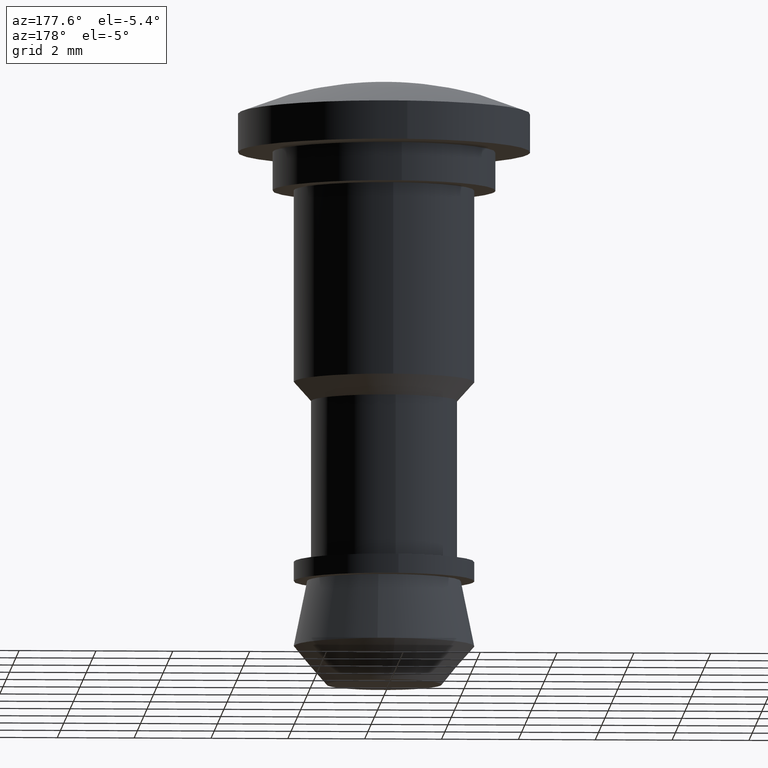
[diagram: clean part render]
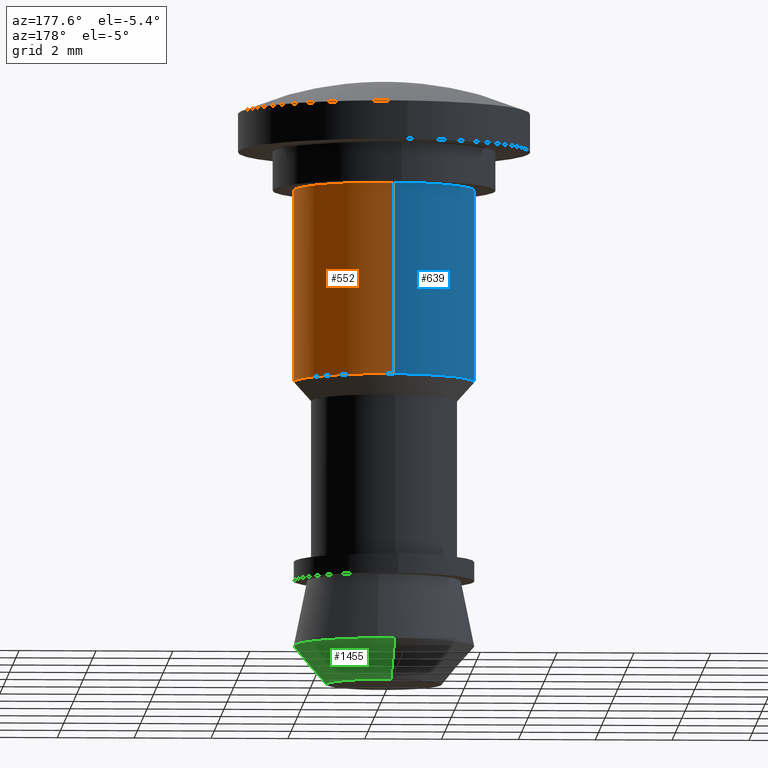
[diagram: same view with three faces highlighted in distinct colors, each labeled with its STEP entity id]
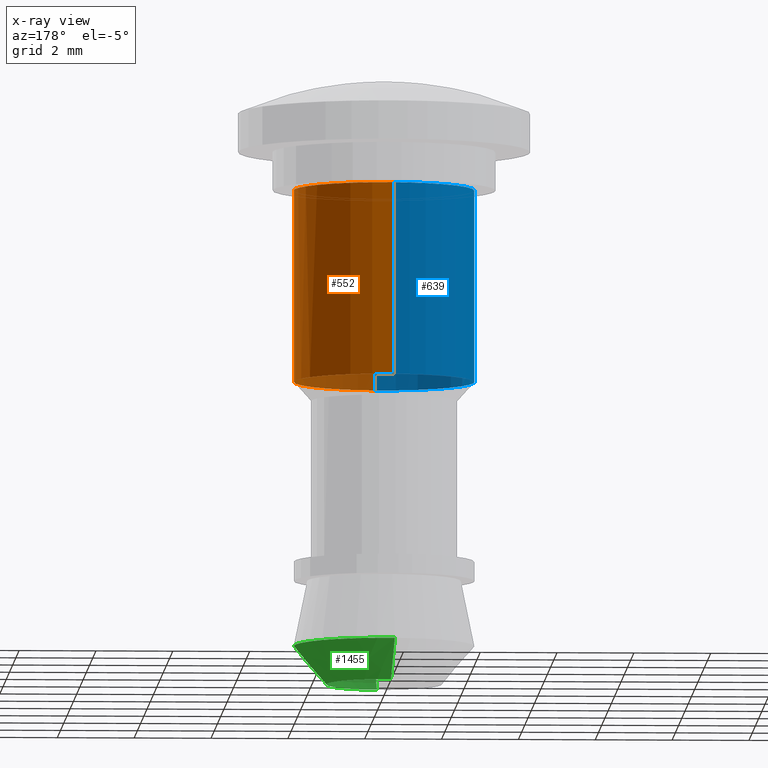
[diagram: x-ray of the same camera — body ghosted, the three highlighted faces saturated]
A machine part, auxiliary view with three faces highlighted in distinct colors.
The next image is the same camera in x-ray (body ghosted, the three faces saturated) — at least one of them is partly hidden behind the body in this view.
Their STEP definitions:

[orange] entity #552 — the highlighted face is a freeform B-spline surface patch.
#420=CARTESIAN_POINT('',(-0.176442931078499,2.343599702610228,0.125000000000000));
#421=CARTESIAN_POINT('',(-0.160001654902445,2.344605294139773,0.125000000000000));
#422=CARTESIAN_POINT('',(2.202152708384472,2.489080844198301,0.125000000000000));
#423=CARTESIAN_POINT('',(2.345616776291387,0.143464067906914,0.125000000000000));
#424=CARTESIAN_POINT('',(2.489080844198301,-2.202152708384472,0.125000000000000));
#425=CARTESIAN_POINT('',(0.126924577174466,-2.346628374880538,0.125000000000000));
#426=CARTESIAN_POINT('',(0.110481419404267,-2.347634081493313,0.125000000000000));
#427=CARTESIAN_POINT('',(-0.176442931078499,2.343599702610228,-5.128124999999999));
#428=CARTESIAN_POINT('',(-0.160001654902445,2.344605294139773,-5.128124999999999));
#429=CARTESIAN_POINT('',(2.202152708384472,2.489080844198301,-5.128125000000001));
#430=CARTESIAN_POINT('',(2.345616776291387,0.143464067906914,-5.128125000000001));
#431=CARTESIAN_POINT('',(2.489080844198301,-2.202152708384472,-5.128125000000001));
#432=CARTESIAN_POINT('',(0.126924577174466,-2.346628374880538,-5.128125000000000));
#433=CARTESIAN_POINT('',(0.110481419404267,-2.347634081493313,-5.128125000000004));
#441=(BOUNDED_SURFACE()B_SPLINE_SURFACE(2,1,((#420,#427),(#421,#428),(#422,#429),(#423,#430),(#424,#431),(#425,#432),(#426,#433)),.UNSPECIFIED.,.F.,.F.,.U.)B_SPLINE_SURFACE_WITH_KNOTS((3,1,2,1,3),(2,2),(0.0,0.038936096477855,3.932543582784948,7.826151069092041,7.865091660857744),(0.0,5.253125000000002),.UNSPECIFIED.)GEOMETRIC_REPRESENTATION_ITEM()RATIONAL_B_SPLINE_SURFACE(((1.005857867628176,1.005857867628176),(1.002928933814088,1.002928933814088),(0.707106781186548,0.707106781186548),(1.0,1.0),(0.707106781186548,0.707106781186548),(1.002929271968186,1.002929271968186),(1.005858543936371,1.005858543936371)))REPRESENTATION_ITEM('')SURFACE());
#442=CARTESIAN_POINT('',(-0.143464067914200,2.345616776290942,-5.0));
#443=VERTEX_POINT('',#442);
#444=CARTESIAN_POINT('',(1.981144114830629,1.263949364599828,-4.999999999999912));
#445=VERTEX_POINT('',#444);
#446=CARTESIAN_POINT('',(-0.143464067914200,2.345616776290942,-5.0));
#447=CARTESIAN_POINT('',(-0.071798993758991,2.350000000000000,-4.999999999999999));
#448=CARTESIAN_POINT('',(0.0,2.350000000000000,-5.0));
#449=CARTESIAN_POINT('',(1.288255091632711,2.350000000000000,-5.0));
#450=CARTESIAN_POINT('',(1.981144114830629,1.263949364599828,-4.999999999999911));
#458=(BOUNDED_CURVE()B_SPLINE_CURVE(2,(#446,#447,#448,#449,#450),.UNSPECIFIED.,.F.,.U.)B_SPLINE_CURVE_WITH_KNOTS((3,2,3),(0.239332962240896,0.250000000000000,0.407950112627384),.UNSPECIFIED.)CURVE()GEOMETRIC_REPRESENTATION_ITEM()RATIONAL_B_SPLINE_CURVE((0.976072041670904,0.987502787902126,1.0,0.814949932402473,0.863729296954821))REPRESENTATION_ITEM(''));
#459=EDGE_CURVE('',#443,#445,#458,.T.);
#460=ORIENTED_EDGE('',*,*,#459,.F.);
#461=CARTESIAN_POINT('',(-0.143460238088021,2.345617010526869,-1.110223E-016));
#462=VERTEX_POINT('',#461);
#463=CARTESIAN_POINT('',(-0.143460238088021,2.345617010526869,-1.110223E-016));
#464=CARTESIAN_POINT('',(-0.143464067914200,2.345616776290942,-5.0));
#465=QUASI_UNIFORM_CURVE('',1,(#463,#464),.UNSPECIFIED.,.F.,.U.);
#466=EDGE_CURVE('',#462,#443,#465,.T.);
#467=ORIENTED_EDGE('',*,*,#466,.F.);
#468=CARTESIAN_POINT('',(2.350000000000000,0.0,0.0));
#469=VERTEX_POINT('',#468);
#470=CARTESIAN_POINT('',(-0.143460238088021,2.345617010526869,-1.110223E-016));
#471=CARTESIAN_POINT('',(-0.071797073473257,2.350000000000000,0.0));
#472=CARTESIAN_POINT('',(0.0,2.350000000000000,0.0));
#473=CARTESIAN_POINT('',(2.350000000000001,2.350000000000001,0.0));
#474=CARTESIAN_POINT('',(2.350000000000000,0.0,0.0));
#482=(BOUNDED_CURVE()B_SPLINE_CURVE(2,(#470,#471,#472,#473,#474),.UNSPECIFIED.,.F.,.U.)B_SPLINE_CURVE_WITH_KNOTS((3,2,3),(0.239333243968762,0.250000000000000,0.500000000000000),.UNSPECIFIED.)CURVE()GEOMETRIC_REPRESENTATION_ITEM()RATIONAL_B_SPLINE_CURVE((0.976072645468094,0.987503117966852,1.0,0.707106781186547,1.0))REPRESENTATION_ITEM(''));
#483=EDGE_CURVE('',#462,#469,#482,.T.);
#484=ORIENTED_EDGE('',*,*,#483,.T.);
#485=CARTESIAN_POINT('',(0.143460238088021,-2.345617010526869,-1.110223E-016));
#486=VERTEX_POINT('',#485);
#487=CARTESIAN_POINT('',(2.350000000000000,0.0,0.0));
#488=CARTESIAN_POINT('',(2.350000000000001,-2.210662873442012,0.0));
#489=CARTESIAN_POINT('',(0.143460238088021,-2.345617010526869,-1.110223E-016));
#497=(BOUNDED_CURVE()B_SPLINE_CURVE(2,(#487,#488,#489),.UNSPECIFIED.,.F.,.U.)B_SPLINE_CURVE_WITH_KNOTS((3,3),(0.500000000000000,0.739333243968762),.UNSPECIFIED.)CURVE()GEOMETRIC_REPRESENTATION_ITEM()RATIONAL_B_SPLINE_CURVE((1.0,0.719603663219696,0.976072645468094))REPRESENTATION_ITEM(''));
#498=EDGE_CURVE('',#469,#486,#497,.T.);
#499=ORIENTED_EDGE('',*,*,#498,.T.);
#500=CARTESIAN_POINT('',(0.143463825532279,-2.345616791115630,-4.999999999999996));
#501=VERTEX_POINT('',#500);
#502=CARTESIAN_POINT('',(0.143460238088021,-2.345617010526869,-1.110223E-016));
#503=CARTESIAN_POINT('',(0.143463825532279,-2.345616791115630,-4.999999999999996));
#504=QUASI_UNIFORM_CURVE('',1,(#502,#503),.UNSPECIFIED.,.F.,.U.);
#505=EDGE_CURVE('',#486,#501,#504,.T.);
#506=ORIENTED_EDGE('',*,*,#505,.T.);
#507=CARTESIAN_POINT('',(0.184378874990374,-2.342755734274273,-4.999999999995808));
#508=VERTEX_POINT('',#507);
#509=CARTESIAN_POINT('',(0.184378874990374,-2.342755734274272,-4.999999999995809));
#510=CARTESIAN_POINT('',(0.163933713333639,-2.344364803389705,-5.0));
#511=CARTESIAN_POINT('',(0.143463825532279,-2.345616791115630,-4.999999999999996));
#519=(BOUNDED_CURVE()B_SPLINE_CURVE(2,(#509,#510,#511),.UNSPECIFIED.,.F.,.U.)B_SPLINE_CURVE_WITH_KNOTS((3,3),(0.736331300628429,0.739332997900791),.UNSPECIFIED.)CURVE()GEOMETRIC_REPRESENTATION_ITEM()RATIONAL_B_SPLINE_CURVE((0.969723356162762,0.972855512769323,0.976072118096859))REPRESENTATION_ITEM(''));
#520=EDGE_CURVE('',#508,#501,#519,.T.);
#521=ORIENTED_EDGE('',*,*,#520,.F.);
#522=CARTESIAN_POINT('',(2.350000000000000,0.0,-5.0));
#523=VERTEX_POINT('',#522);
#524=CARTESIAN_POINT('',(2.350000000000000,0.0,-5.0));
#525=CARTESIAN_POINT('',(2.350000000000001,-2.172317655341654,-5.0));
#526=CARTESIAN_POINT('',(0.184378874990374,-2.342755734274273,-4.999999999995808));
#534=(BOUNDED_CURVE()B_SPLINE_CURVE(2,(#524,#525,#526),.UNSPECIFIED.,.F.,.U.)B_SPLINE_CURVE_WITH_KNOTS((3,3),(0.500000000000000,0.736331300628430),.UNSPECIFIED.)CURVE()GEOMETRIC_REPRESENTATION_ITEM()RATIONAL_B_SPLINE_CURVE((1.0,0.723120658610278,0.969723356162764))REPRESENTATION_ITEM(''));
#535=EDGE_CURVE('',#523,#508,#534,.T.);
#536=ORIENTED_EDGE('',*,*,#535,.F.);
#537=CARTESIAN_POINT('',(1.981144114830628,1.263949364599829,-4.999999999999912));
#538=CARTESIAN_POINT('',(2.350000000000000,0.685795930142831,-5.0));
#539=CARTESIAN_POINT('',(2.350000000000000,0.0,-5.0));
#547=(BOUNDED_CURVE()B_SPLINE_CURVE(2,(#537,#538,#539),.UNSPECIFIED.,.F.,.U.)B_SPLINE_CURVE_WITH_KNOTS((3,3),(0.407950112627383,0.500000000000000),.UNSPECIFIED.)CURVE()GEOMETRIC_REPRESENTATION_ITEM()RATIONAL_B_SPLINE_CURVE((0.863729296954821,0.892156848784074,1.0))REPRESENTATION_ITEM(''));
#548=EDGE_CURVE('',#445,#523,#547,.T.);
#549=ORIENTED_EDGE('',*,*,#548,.F.);
#550=EDGE_LOOP('',(#460,#467,#484,#499,#506,#521,#536,#549));
#551=FACE_OUTER_BOUND('',#550,.T.);
#552=ADVANCED_FACE('',(#551),#441,.T.);

[blue] entity #639 — the highlighted face is a freeform B-spline surface patch.
#442=CARTESIAN_POINT('',(-0.143464067914200,2.345616776290942,-5.0));
#443=VERTEX_POINT('',#442);
#461=CARTESIAN_POINT('',(-0.143460238088021,2.345617010526869,-1.110223E-016));
#462=VERTEX_POINT('',#461);
#463=CARTESIAN_POINT('',(-0.143460238088021,2.345617010526869,-1.110223E-016));
#464=CARTESIAN_POINT('',(-0.143464067914200,2.345616776290942,-5.0));
#465=QUASI_UNIFORM_CURVE('',1,(#463,#464),.UNSPECIFIED.,.F.,.U.);
#466=EDGE_CURVE('',#462,#443,#465,.T.);
#485=CARTESIAN_POINT('',(0.143460238088021,-2.345617010526869,-1.110223E-016));
#486=VERTEX_POINT('',#485);
#500=CARTESIAN_POINT('',(0.143463825532279,-2.345616791115630,-4.999999999999996));
#501=VERTEX_POINT('',#500);
#502=CARTESIAN_POINT('',(0.143460238088021,-2.345617010526869,-1.110223E-016));
#503=CARTESIAN_POINT('',(0.143463825532279,-2.345616791115630,-4.999999999999996));
#504=QUASI_UNIFORM_CURVE('',1,(#502,#503),.UNSPECIFIED.,.F.,.U.);
#505=EDGE_CURVE('',#486,#501,#504,.T.);
#553=CARTESIAN_POINT('',(0.176442690313666,-2.343599717336037,0.125000000000000));
#554=CARTESIAN_POINT('',(0.160001533815880,-2.344605301545747,0.125000000000000));
#555=CARTESIAN_POINT('',(-2.202152708384472,-2.489080844198301,0.125000000000000));
#556=CARTESIAN_POINT('',(-2.345616776291387,-0.143464067906914,0.125000000000000));
#557=CARTESIAN_POINT('',(-2.489080844198301,2.202152708384472,0.125000000000000));
#558=CARTESIAN_POINT('',(-0.126924577776944,2.346628374843689,0.125000000000000));
#559=CARTESIAN_POINT('',(-0.110481420602216,2.347634081420043,0.125000000000000));
#560=CARTESIAN_POINT('',(0.176442690313666,-2.343599717336037,-5.128125000000000));
#561=CARTESIAN_POINT('',(0.160001533815880,-2.344605301545747,-5.128125000000003));
#562=CARTESIAN_POINT('',(-2.202152708384472,-2.489080844198301,-5.128125000000001));
#563=CARTESIAN_POINT('',(-2.345616776291387,-0.143464067906914,-5.128125000000001));
#564=CARTESIAN_POINT('',(-2.489080844198301,2.202152708384472,-5.128125000000001));
#565=CARTESIAN_POINT('',(-0.126924577776944,2.346628374843689,-5.128124999999999));
#566=CARTESIAN_POINT('',(-0.110481420602216,2.347634081420043,-5.128125000000002));
#574=(BOUNDED_SURFACE()B_SPLINE_SURFACE(2,1,((#553,#560),(#554,#561),(#555,#562),(#556,#563),(#557,#564),(#558,#565),(#559,#566)),.UNSPECIFIED.,.F.,.F.,.U.)B_SPLINE_SURFACE_WITH_KNOTS((3,1,2,1,3),(2,2),(0.0,0.038935810556641,3.932543296863733,7.826150783170825,7.865091373513898),(0.0,5.253125000000002),.UNSPECIFIED.)GEOMETRIC_REPRESENTATION_ITEM()RATIONAL_B_SPLINE_SURFACE(((1.005857824611829,1.005857824611829),(1.002928912305914,1.002928912305914),(0.707106781186548,0.707106781186548),(1.0,1.0),(0.707106781186548,0.707106781186548),(1.002929271861170,1.002929271861170),(1.005858543722339,1.005858543722339)))REPRESENTATION_ITEM('')SURFACE());
#575=CARTESIAN_POINT('',(-2.350000000000000,0.0,-5.0));
#576=VERTEX_POINT('',#575);
#577=CARTESIAN_POINT('',(-2.350000000000000,0.0,-5.0));
#578=CARTESIAN_POINT('',(-2.350000000000001,2.210659257214623,-5.000000000000001));
#579=CARTESIAN_POINT('',(-0.143464067914200,2.345616776290942,-5.0));
#587=(BOUNDED_CURVE()B_SPLINE_CURVE(2,(#577,#578,#579),.UNSPECIFIED.,.F.,.U.)B_SPLINE_CURVE_WITH_KNOTS((3,3),(0.0,0.239332962240896),.UNSPECIFIED.)CURVE()GEOMETRIC_REPRESENTATION_ITEM()RATIONAL_B_SPLINE_CURVE((1.0,0.719603993284421,0.976072041670904))REPRESENTATION_ITEM(''));
#588=EDGE_CURVE('',#576,#443,#587,.T.);
#589=ORIENTED_EDGE('',*,*,#588,.F.);
#590=CARTESIAN_POINT('',(0.143463825532279,-2.345616791115630,-4.999999999999996));
#591=CARTESIAN_POINT('',(0.071798750697457,-2.350000000000001,-5.0));
#592=CARTESIAN_POINT('',(0.0,-2.350000000000000,-5.0));
#593=CARTESIAN_POINT('',(-2.350000000000001,-2.350000000000001,-4.999999999999999));
#594=CARTESIAN_POINT('',(-2.350000000000000,0.0,-5.0));
#602=(BOUNDED_CURVE()B_SPLINE_CURVE(2,(#590,#591,#592,#593,#594),.UNSPECIFIED.,.F.,.U.)B_SPLINE_CURVE_WITH_KNOTS((3,2,3),(0.739332997900791,0.750000000000000,1.0),.UNSPECIFIED.)CURVE()GEOMETRIC_REPRESENTATION_ITEM()RATIONAL_B_SPLINE_CURVE((0.976072118096859,0.987502829680291,1.0,0.707106781186547,1.0))REPRESENTATION_ITEM(''));
#603=EDGE_CURVE('',#501,#576,#602,.T.);
#604=ORIENTED_EDGE('',*,*,#603,.F.);
#605=ORIENTED_EDGE('',*,*,#505,.F.);
#606=CARTESIAN_POINT('',(-2.350000000000000,0.0,0.0));
#607=VERTEX_POINT('',#606);
#608=CARTESIAN_POINT('',(0.143460238088021,-2.345617010526869,-1.110223E-016));
#609=CARTESIAN_POINT('',(0.071797073473258,-2.350000000000000,0.0));
#610=CARTESIAN_POINT('',(0.0,-2.350000000000000,0.0));
#611=CARTESIAN_POINT('',(-2.350000000000001,-2.350000000000001,0.0));
#612=CARTESIAN_POINT('',(-2.350000000000000,0.0,0.0));
#620=(BOUNDED_CURVE()B_SPLINE_CURVE(2,(#608,#609,#610,#611,#612),.UNSPECIFIED.,.F.,.U.)B_SPLINE_CURVE_WITH_KNOTS((3,2,3),(0.739333243968762,0.750000000000000,1.0),.UNSPECIFIED.)CURVE()GEOMETRIC_REPRESENTATION_ITEM()RATIONAL_B_SPLINE_CURVE((0.976072645468094,0.987503117966852,1.0,0.707106781186547,1.0))REPRESENTATION_ITEM(''));
#621=EDGE_CURVE('',#486,#607,#620,.T.);
#622=ORIENTED_EDGE('',*,*,#621,.T.);
#623=CARTESIAN_POINT('',(-2.350000000000000,0.0,0.0));
#624=CARTESIAN_POINT('',(-2.350000000000001,2.210662873442012,0.0));
#625=CARTESIAN_POINT('',(-0.143460238088021,2.345617010526869,-1.110223E-016));
#633=(BOUNDED_CURVE()B_SPLINE_CURVE(2,(#623,#624,#625),.UNSPECIFIED.,.F.,.U.)B_SPLINE_CURVE_WITH_KNOTS((3,3),(0.0,0.239333243968762),.UNSPECIFIED.)CURVE()GEOMETRIC_REPRESENTATION_ITEM()RATIONAL_B_SPLINE_CURVE((1.0,0.719603663219696,0.976072645468094))REPRESENTATION_ITEM(''));
#634=EDGE_CURVE('',#607,#462,#633,.T.);
#635=ORIENTED_EDGE('',*,*,#634,.T.);
#636=ORIENTED_EDGE('',*,*,#466,.T.);
#637=EDGE_LOOP('',(#589,#604,#605,#622,#635,#636));
#638=FACE_OUTER_BOUND('',#637,.T.);
#639=ADVANCED_FACE('',(#638),#574,.T.);

[green] entity #1455 — the highlighted face is a freeform B-spline surface patch.
#1134=CARTESIAN_POINT('',(0.268134337341499,2.334633233307837,-11.899905292479900));
#1135=VERTEX_POINT('',#1134);
#1136=CARTESIAN_POINT('',(2.349980501392750,0.0,-11.899905292479019));
#1137=VERTEX_POINT('',#1136);
#1138=CARTESIAN_POINT('',(0.268134337341499,2.334633233307837,-11.899905292479904));
#1139=CARTESIAN_POINT('',(2.349980501392750,2.095531676072520,-11.899905292479025));
#1140=CARTESIAN_POINT('',(2.349980501392750,0.0,-11.899905292479019));
#1148=(BOUNDED_CURVE()B_SPLINE_CURVE(2,(#1138,#1139,#1140),.UNSPECIFIED.,.F.,.U.)B_SPLINE_CURVE_WITH_KNOTS((3,3),(0.269767755877433,0.500000000000000),.UNSPECIFIED.)CURVE()GEOMETRIC_REPRESENTATION_ITEM()RATIONAL_B_SPLINE_CURVE((0.957343736459039,0.730266147777187,1.0))REPRESENTATION_ITEM(''));
#1149=EDGE_CURVE('',#1135,#1137,#1148,.T.);
#1195=CARTESIAN_POINT('',(0.184377345145986,-2.342736295774616,-11.899905292474889));
#1196=VERTEX_POINT('',#1195);
#1210=CARTESIAN_POINT('',(2.349980501392750,0.0,-11.899905292479019));
#1211=CARTESIAN_POINT('',(2.349980501392750,-2.172299631016881,-11.899905292479023));
#1212=CARTESIAN_POINT('',(0.184377345145986,-2.342736295774616,-11.899905292474891));
#1220=(BOUNDED_CURVE()B_SPLINE_CURVE(2,(#1210,#1211,#1212),.UNSPECIFIED.,.F.,.U.)B_SPLINE_CURVE_WITH_KNOTS((3,3),(0.500000000000000,0.736331300628616),.UNSPECIFIED.)CURVE()GEOMETRIC_REPRESENTATION_ITEM()RATIONAL_B_SPLINE_CURVE((1.0,0.723120658610060,0.969723356163153))REPRESENTATION_ITEM(''));
#1221=EDGE_CURVE('',#1137,#1196,#1220,.T.);
#1248=CARTESIAN_POINT('',(-0.184377345145986,2.342736295774615,-11.899905292474889));
#1249=VERTEX_POINT('',#1248);
#1250=CARTESIAN_POINT('',(-0.184377345145986,2.342736295774615,-11.899905292474884));
#1251=CARTESIAN_POINT('',(-0.092330985394153,2.349980501392749,-11.899905292479023));
#1252=CARTESIAN_POINT('',(0.0,2.349980501392750,-11.899905292479019));
#1253=CARTESIAN_POINT('',(0.134506386268806,2.349980501392750,-11.899905292479028));
#1254=CARTESIAN_POINT('',(0.268134337341499,2.334633233307837,-11.899905292479909));
#1262=(BOUNDED_CURVE()B_SPLINE_CURVE(2,(#1250,#1251,#1252,#1253,#1254),.UNSPECIFIED.,.F.,.U.)B_SPLINE_CURVE_WITH_KNOTS((3,2,3),(0.236331300628616,0.250000000000000,0.269767755877433),.UNSPECIFIED.)CURVE()GEOMETRIC_REPRESENTATION_ITEM()RATIONAL_B_SPLINE_CURVE((0.969723356163153,0.983986122576488,1.0,0.976840633409361,0.957343736459040))REPRESENTATION_ITEM(''));
#1263=EDGE_CURVE('',#1249,#1135,#1262,.T.);
#1351=CARTESIAN_POINT('',(-0.117680797692838,1.495276308866803,-12.899999999998450));
#1352=VERTEX_POINT('',#1351);
#1353=CARTESIAN_POINT('',(-0.117680797692838,1.495276308866803,-12.899999999998450));
#1354=CARTESIAN_POINT('',(-0.184377345145986,2.342736295774615,-11.899905292474889));
#1355=QUASI_UNIFORM_CURVE('',1,(#1353,#1354),.UNSPECIFIED.,.F.,.U.);
#1356=EDGE_CURVE('',#1352,#1249,#1355,.T.);
#1373=CARTESIAN_POINT('',(0.117680797692838,-1.495276308866802,-12.899999999998450));
#1374=VERTEX_POINT('',#1373);
#1390=CARTESIAN_POINT('',(0.117680797692838,-1.495276308866802,-12.899999999998450));
#1391=CARTESIAN_POINT('',(0.184377345145986,-2.342736295774616,-11.899905292474889));
#1392=QUASI_UNIFORM_CURVE('',1,(#1390,#1391),.UNSPECIFIED.,.F.,.U.);
#1393=EDGE_CURVE('',#1374,#1196,#1392,.T.);
#1400=CARTESIAN_POINT('',(0.116013383996317,-1.474089809193642,-12.925002367688030));
#1401=CARTESIAN_POINT('',(1.590103193189958,-1.358076425197325,-12.925002367688025));
#1402=CARTESIAN_POINT('',(1.474089809193642,0.116013383996317,-12.925002367688030));
#1403=CARTESIAN_POINT('',(1.358076425197325,1.590103193189958,-12.925002367688025));
#1404=CARTESIAN_POINT('',(-0.116013383996317,1.474089809193642,-12.925002367688030));
#1405=CARTESIAN_POINT('',(0.186086444145377,-2.364452457937885,-11.874277865598801));
#1406=CARTESIAN_POINT('',(2.550538902083263,-2.178366013792509,-11.874277865598796));
#1407=CARTESIAN_POINT('',(2.364452457937885,0.186086444145377,-11.874277865598801));
#1408=CARTESIAN_POINT('',(2.178366013792509,2.550538902083263,-11.874277865598796));
#1409=CARTESIAN_POINT('',(-0.186086444145377,2.364452457937885,-11.874277865598801));
#1417=(BOUNDED_SURFACE()B_SPLINE_SURFACE(2,1,((#1400,#1405),(#1401,#1406),(#1402,#1407),(#1403,#1408),(#1404,#1409)),.UNSPECIFIED.,.F.,.F.,.U.)B_SPLINE_SURFACE_WITH_KNOTS((3,2,3),(2,2),(0.0,3.929666954417513,7.859333908835025),(0.0,1.0),.UNSPECIFIED.)GEOMETRIC_REPRESENTATION_ITEM()RATIONAL_B_SPLINE_SURFACE(((1.0,1.0),(0.707106781186548,0.707106781186548),(1.0,1.0),(0.707106781186548,0.707106781186548),(1.0,1.0)))REPRESENTATION_ITEM('')SURFACE());
#1418=ORIENTED_EDGE('',*,*,#1263,.T.);
#1419=ORIENTED_EDGE('',*,*,#1149,.T.);
#1420=ORIENTED_EDGE('',*,*,#1221,.T.);
#1421=ORIENTED_EDGE('',*,*,#1393,.F.);
#1422=CARTESIAN_POINT('',(1.499900000000000,0.0,-12.900000000000000));
#1423=VERTEX_POINT('',#1422);
#1424=CARTESIAN_POINT('',(1.499900000000000,0.0,-12.900000000000000));
#1425=CARTESIAN_POINT('',(1.499900000000000,-1.386493298418538,-12.899999999999999));
#1426=CARTESIAN_POINT('',(0.117680797692838,-1.495276308866803,-12.899999999998453));
#1434=(BOUNDED_CURVE()B_SPLINE_CURVE(2,(#1424,#1425,#1426),.UNSPECIFIED.,.F.,.U.)B_SPLINE_CURVE_WITH_KNOTS((3,3),(0.500000000000000,0.736331300630350),.UNSPECIFIED.)CURVE()GEOMETRIC_REPRESENTATION_ITEM()RATIONAL_B_SPLINE_CURVE((1.0,0.723120658608028,0.969723356166772))REPRESENTATION_ITEM(''));
#1435=EDGE_CURVE('',#1423,#1374,#1434,.T.);
#1436=ORIENTED_EDGE('',*,*,#1435,.F.);
#1437=CARTESIAN_POINT('',(-0.117680797692838,1.495276308866803,-12.899999999998453));
#1438=CARTESIAN_POINT('',(-0.058931231511392,1.499900000000000,-12.899999999999999));
#1439=CARTESIAN_POINT('',(0.0,1.499900000000000,-12.900000000000000));
#1440=CARTESIAN_POINT('',(1.499899999999999,1.499899999999999,-12.899999999999999));
#1441=CARTESIAN_POINT('',(1.499900000000000,0.0,-12.900000000000000));
#1449=(BOUNDED_CURVE()B_SPLINE_CURVE(2,(#1437,#1438,#1439,#1440,#1441),.UNSPECIFIED.,.F.,.U.)B_SPLINE_CURVE_WITH_KNOTS((3,2,3),(0.236331300630350,0.250000000000000,0.500000000000000),.UNSPECIFIED.)CURVE()GEOMETRIC_REPRESENTATION_ITEM()RATIONAL_B_SPLINE_CURVE((0.969723356166772,0.983986122578519,1.0,0.707106781186547,1.0))REPRESENTATION_ITEM(''));
#1450=EDGE_CURVE('',#1352,#1423,#1449,.T.);
#1451=ORIENTED_EDGE('',*,*,#1450,.F.);
#1452=ORIENTED_EDGE('',*,*,#1356,.T.);
#1453=EDGE_LOOP('',(#1418,#1419,#1420,#1421,#1436,#1451,#1452));
#1454=FACE_OUTER_BOUND('',#1453,.T.);
#1455=ADVANCED_FACE('',(#1454),#1417,.T.);